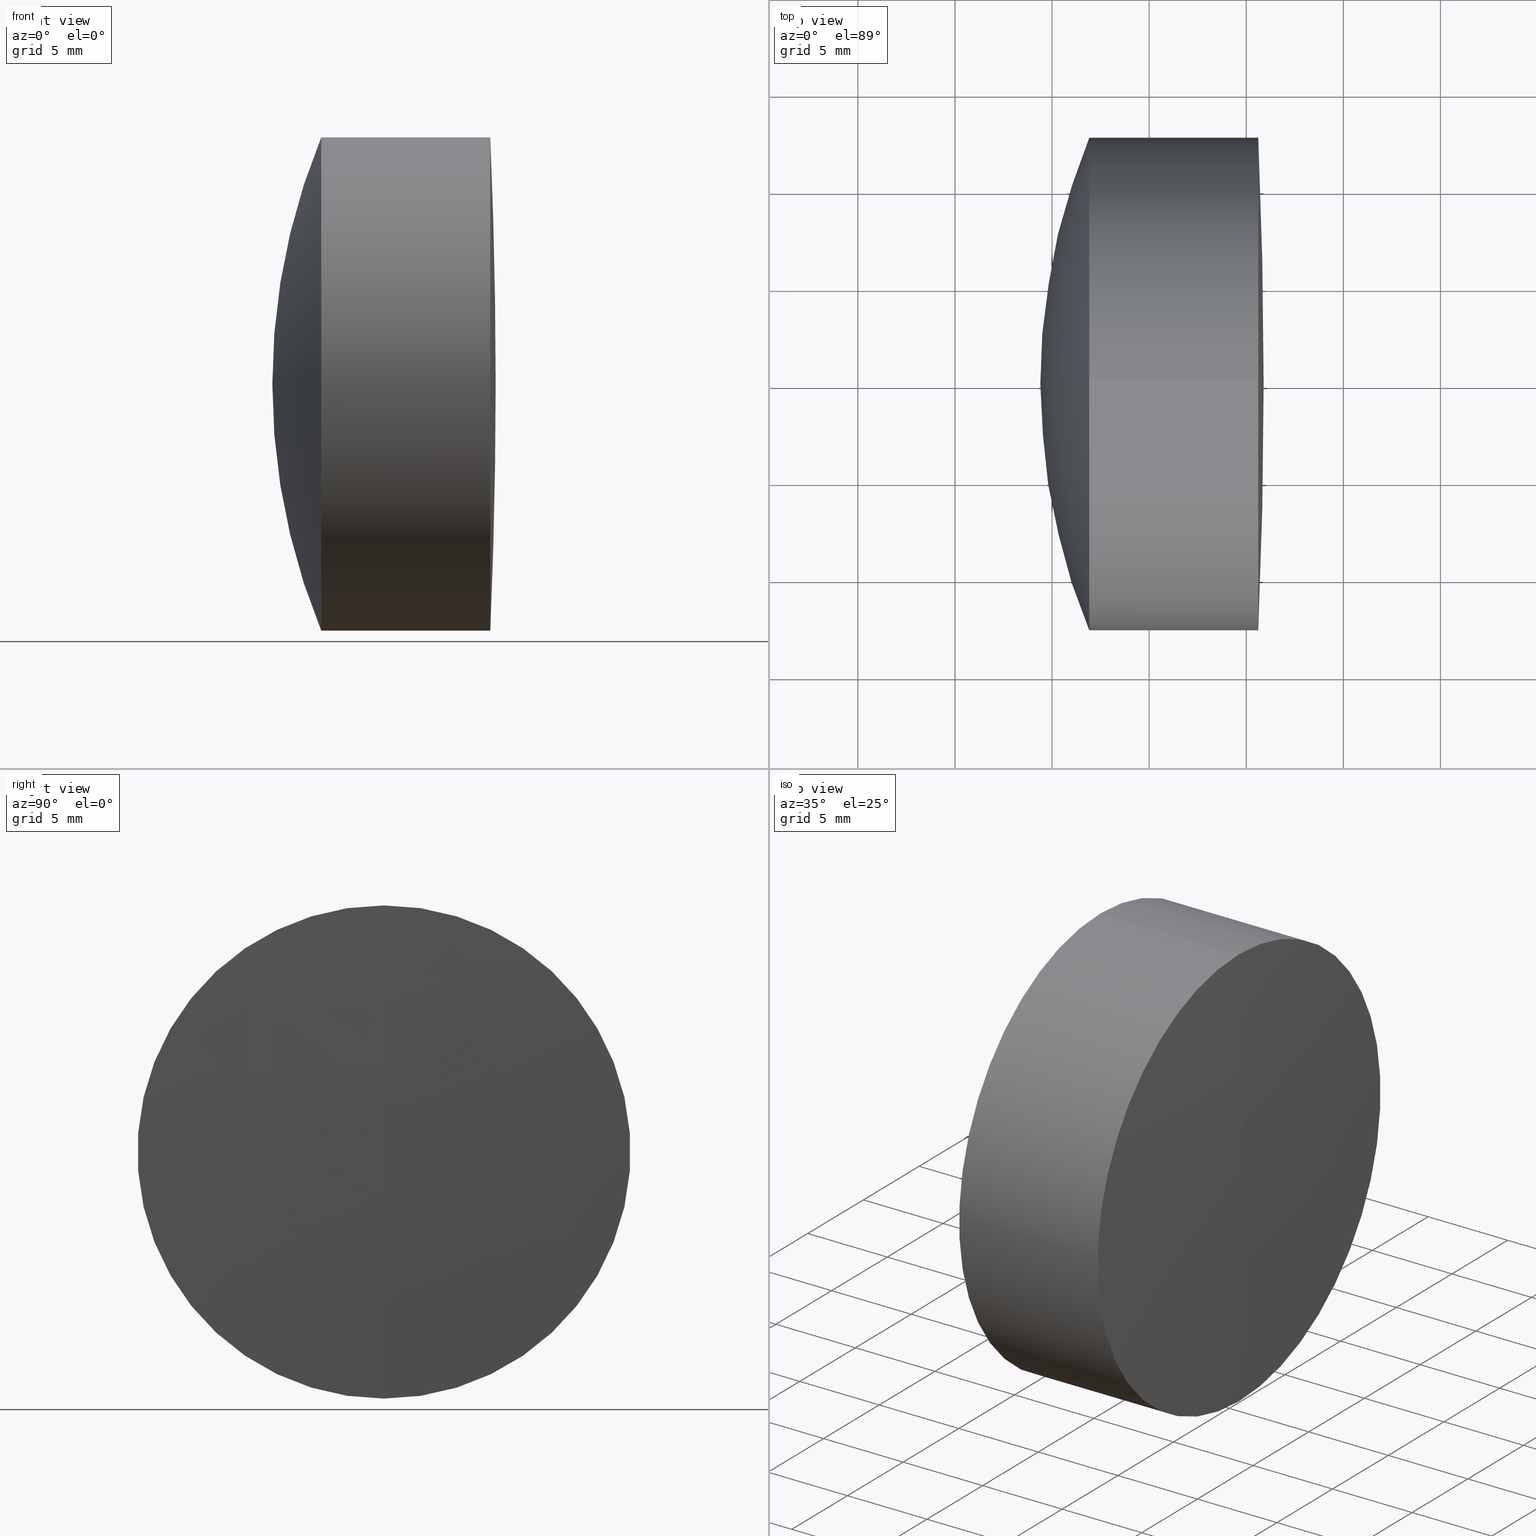
[diagram: canonical four-view strip — front | top / right | iso, engineering-drawing reading convention]
A machine part, canonical four-view strip (front | top / right | iso — engineering-drawing reading convention). The complete STEP part file that produces these views, byte-faithful:
ISO-10303-21;
HEADER;
FILE_DESCRIPTION (( 'STEP AP214' ),
    '1' );
FILE_NAME ('145054.STEP',
    '2019-05-13T07:34:26',
    ( 'user' ),
    ( '΢���й�' ),
    'SwSTEP 2.0',
    'SolidWorks 2016',
    '' );
FILE_SCHEMA (( 'AUTOMOTIVE_DESIGN' ));
ENDSEC;

DATA;
#1 = AXIS2_PLACEMENT_3D ( 'NONE', #181, #180, #169 ) ;
#2 = AXIS2_PLACEMENT_3D ( 'NONE', #161, #240, #300 ) ;
#3 = DIRECTION ( 'NONE',  ( 0.0000000000000000000, 1.000000000000000000, 0.0000000000000000000 ) ) ;
#4 = ORIENTED_EDGE ( 'NONE', *, *, #146, .T. ) ;
#5 = PRODUCT_RELATED_PRODUCT_CATEGORY ( 'part', '', ( #329 ) ) ;
#6 = ADVANCED_FACE ( 'NONE', ( #219 ), #7, .T. ) ;
#7 = CYLINDRICAL_SURFACE ( 'NONE', #183, 12.69999999999999600 ) ;
#8 = LINE ( 'NONE', #189, #239 ) ;
#9 = VERTEX_POINT ( 'NONE', #72 ) ;
#10 = AXIS2_PLACEMENT_3D ( 'NONE', #43, #313, #306 ) ;
#11 = DIRECTION ( 'NONE',  ( 0.0000000000000000000, 0.0000000000000000000, 1.000000000000000000 ) ) ;
#12 = SPHERICAL_SURFACE ( 'NONE', #266, 22.29999999999999400 ) ;
#13 = CARTESIAN_POINT ( 'NONE',  ( 0.0000000000000000000, 0.0000000000000000000, 0.0000000000000000000 ) ) ;
#14 = EDGE_CURVE ( 'NONE', #281, #97, #102, .T. ) ;
#15 = ORIENTED_EDGE ( 'NONE', *, *, #114, .F. ) ;
#16 = UNCERTAINTY_MEASURE_WITH_UNIT (LENGTH_MEASURE( 1.000000000000000100E-005 ), #152, 'distance_accuracy_value', 'NONE');
#17 = MECHANICAL_DESIGN_GEOMETRIC_PRESENTATION_REPRESENTATION (  '', ( #192 ), #138 ) ;
#18 =( GEOMETRIC_REPRESENTATION_CONTEXT ( 3 ) GLOBAL_UNCERTAINTY_ASSIGNED_CONTEXT ( ( #16 ) ) GLOBAL_UNIT_ASSIGNED_CONTEXT ( ( #152, #136, #200 ) ) REPRESENTATION_CONTEXT ( 'NONE', 'WORKASPACE' ) );
#19 = ADVANCED_FACE ( 'NONE', ( #147 ), #108, .T. ) ;
#20 = CARTESIAN_POINT ( 'NONE',  ( 211.0958458084194300, 0.0000000000000000000, -3.185954776904472300E-015 ) ) ;
#21 = DIRECTION ( 'NONE',  ( 0.0000000000000000000, 0.0000000000000000000, 1.000000000000000000 ) ) ;
#22 = DIRECTION ( 'NONE',  ( 0.0000000000000000000, 0.0000000000000000000, 1.000000000000000000 ) ) ;
#23 = VERTEX_POINT ( 'NONE', #163 ) ;
#24 = VERTEX_POINT ( 'NONE', #341 ) ;
#25 = DIRECTION ( 'NONE',  ( -1.000000000000000000, -0.0000000000000000000, -0.0000000000000000000 ) ) ;
#26 = STYLED_ITEM ( 'NONE', ( #40 ), #179 ) ;
#27 = DIRECTION ( 'NONE',  ( -1.000000000000000000, -0.0000000000000000000, -0.0000000000000000000 ) ) ;
#28 = CARTESIAN_POINT ( 'NONE',  ( 226.9127335551075600, 1.555301434917138200E-015, -12.70000000000000100 ) ) ;
#29 = VERTEX_POINT ( 'NONE', #283 ) ;
#30 = EDGE_LOOP ( 'NONE', ( #149, #182, #94 ) ) ;
#31 = DIRECTION ( 'NONE',  ( 0.0000000000000000000, 0.0000000000000000000, 1.000000000000000000 ) ) ;
#32 = ADVANCED_FACE ( 'NONE', ( #187 ), #258, .F. ) ;
#33 = SURFACE_SIDE_STYLE ('',( #287 ) ) ;
#34 = EDGE_LOOP ( 'NONE', ( #162, #117, #41, #193 ) ) ;
#35 = ORIENTED_EDGE ( 'NONE', *, *, #299, .T. ) ;
#36 = LINE ( 'NONE', #54, #207 ) ;
#37 =( GEOMETRIC_REPRESENTATION_CONTEXT ( 3 ) GLOBAL_UNCERTAINTY_ASSIGNED_CONTEXT ( ( #78 ) ) GLOBAL_UNIT_ASSIGNED_CONTEXT ( ( #99, #44, #301 ) ) REPRESENTATION_CONTEXT ( 'NONE', 'WORKASPACE' ) );
#38 = EDGE_LOOP ( 'NONE', ( #60, #322, #323 ) ) ;
#39 = FACE_OUTER_BOUND ( 'NONE', #289, .T. ) ;
#40 = PRESENTATION_STYLE_ASSIGNMENT (( #235 ) ) ;
#41 = ORIENTED_EDGE ( 'NONE', *, *, #215, .T. ) ;
#42 = EDGE_CURVE ( 'NONE', #29, #97, #157, .T. ) ;
#43 = CARTESIAN_POINT ( 'NONE',  ( 211.0958458084194300, 0.0000000000000000000, -3.185954776904472300E-015 ) ) ;
#44 =( NAMED_UNIT ( * ) PLANE_ANGLE_UNIT ( ) SI_UNIT ( $, .RADIAN. ) );
#45 = DIRECTION ( 'NONE',  ( 0.0000000000000000000, 0.0000000000000000000, 1.000000000000000000 ) ) ;
#46 = CARTESIAN_POINT ( 'NONE',  ( -55.20415419158062100, 0.0000000000000000000, 0.0000000000000000000 ) ) ;
#47 = DIRECTION ( 'NONE',  ( -1.000000000000000000, -0.0000000000000000000, -0.0000000000000000000 ) ) ;
#48 = CARTESIAN_POINT ( 'NONE',  ( 226.9127335551075600, 0.0000000000000000000, 0.0000000000000000000 ) ) ;
#49 = ORIENTED_EDGE ( 'NONE', *, *, #87, .F. ) ;
#50 = CIRCLE ( 'NONE', #173, 22.29999999999999400 ) ;
#51 = DIRECTION ( 'NONE',  ( 0.0000000000000000000, 0.0000000000000000000, 1.000000000000000000 ) ) ;
#52 = AXIS2_PLACEMENT_3D ( 'NONE', #288, #71, #225 ) ;
#53 = EDGE_LOOP ( 'NONE', ( #109, #211, #4 ) ) ;
#54 = CARTESIAN_POINT ( 'NONE',  ( -9.702612178336682500, 1.555301434917138000E-015, -12.69999999999999600 ) ) ;
#55 = ADVANCED_FACE ( 'NONE', ( #270 ), #177, .T. ) ;
#56 = DIRECTION ( 'NONE',  ( -1.000000000000000000, -0.0000000000000000000, -0.0000000000000000000 ) ) ;
#57 = DIRECTION ( 'NONE',  ( -1.000000000000000000, -0.0000000000000000000, -0.0000000000000000000 ) ) ;
#58 = AXIS2_PLACEMENT_3D ( 'NONE', #13, #244, #273 ) ;
#59 = CARTESIAN_POINT ( 'NONE',  ( 229.4261485882427700, 1.555301434917138000E-015, -12.69999999999999600 ) ) ;
#60 = ORIENTED_EDGE ( 'NONE', *, *, #299, .F. ) ;
#61 = AXIS2_PLACEMENT_3D ( 'NONE', #153, #83, #82 ) ;
#62 = AXIS2_PLACEMENT_3D ( 'NONE', #234, #277, #347 ) ;
#63 = SPHERICAL_SURFACE ( 'NONE', #319, 22.29999999999999400 ) ;
#64 = DIRECTION ( 'NONE',  ( 0.0000000000000000000, 0.0000000000000000000, -1.000000000000000000 ) ) ;
#65 = EDGE_LOOP ( 'NONE', ( #208, #284, #218 ) ) ;
#66 = ORIENTED_EDGE ( 'NONE', *, *, #168, .F. ) ;
#67 = ADVANCED_BREP_SHAPE_REPRESENTATION ( '145054', ( #141, #179, #58 ), #18 ) ;
#68 = VERTEX_POINT ( 'NONE', #210 ) ;
#69 = CYLINDRICAL_SURFACE ( 'NONE', #101, 12.70000000000002100 ) ;
#70 = ADVANCED_FACE ( 'NONE', ( #254 ), #69, .T. ) ;
#71 = DIRECTION ( 'NONE',  ( 0.0000000000000000000, 1.000000000000000000, 0.0000000000000000000 ) ) ;
#72 = CARTESIAN_POINT ( 'NONE',  ( 235.6186784746321600, 1.555301434917140800E-015, -12.70000000000001700 ) ) ;
#73 = ORIENTED_EDGE ( 'NONE', *, *, #215, .F. ) ;
#74 = AXIS2_PLACEMENT_3D ( 'NONE', #20, #3, #21 ) ;
#75 = SURFACE_STYLE_USAGE ( .BOTH. , #77 ) ;
#76 = CIRCLE ( 'NONE', #10, 22.29999999999999400 ) ;
#77 = SURFACE_SIDE_STYLE ('',( #198 ) ) ;
#78 = UNCERTAINTY_MEASURE_WITH_UNIT (LENGTH_MEASURE( 1.000000000000000100E-005 ), #99, 'distance_accuracy_value', 'NONE');
#79 = ORIENTED_EDGE ( 'NONE', *, *, #127, .F. ) ;
#80 = DIRECTION ( 'NONE',  ( 0.0000000000000000000, -1.224646799147353200E-016, 1.000000000000000000 ) ) ;
#81 = FILL_AREA_STYLE ('',( #188 ) ) ;
#82 = DIRECTION ( 'NONE',  ( 0.0000000000000000000, 0.0000000000000000000, -1.000000000000000000 ) ) ;
#83 = DIRECTION ( 'NONE',  ( 0.0000000000000000000, -1.000000000000000000, 0.0000000000000000000 ) ) ;
#84 = ORIENTED_EDGE ( 'NONE', *, *, #168, .T. ) ;
#85 = CLOSED_SHELL ( 'NONE', ( #296, #6, #19, #265, #55, #333 ) ) ;
#86 = CARTESIAN_POINT ( 'NONE',  ( 229.4261485882427700, 0.0000000000000000000, 12.70000000000002200 ) ) ;
#87 = EDGE_CURVE ( 'NONE', #68, #105, #336, .T. ) ;
#88 = CLOSED_SHELL ( 'NONE', ( #245, #70, #236, #32, #125, #321 ) ) ;
#89 = EDGE_CURVE ( 'NONE', #238, #105, #36, .T. ) ;
#90 = MECHANICAL_DESIGN_GEOMETRIC_PRESENTATION_REPRESENTATION (  '', ( #221 ), #37 ) ;
#91 = UNCERTAINTY_MEASURE_WITH_UNIT (LENGTH_MEASURE( 1.000000000000000100E-005 ), #246, 'distance_accuracy_value', 'NONE');
#92 = COLOUR_RGB ( '',1.000000000000000000, 1.000000000000000000, 1.000000000000000000 ) ;
#93 = DIRECTION ( 'NONE',  ( -1.000000000000000000, -0.0000000000000000000, -0.0000000000000000000 ) ) ;
#94 = ORIENTED_EDGE ( 'NONE', *, *, #264, .F. ) ;
#95 = ORIENTED_EDGE ( 'NONE', *, *, #324, .T. ) ;
#96 = EDGE_CURVE ( 'NONE', #135, #97, #50, .T. ) ;
#97 = VERTEX_POINT ( 'NONE', #86 ) ;
#98 = AXIS2_PLACEMENT_3D ( 'NONE', #292, #332, #303 ) ;
#99 =( LENGTH_UNIT ( ) NAMED_UNIT ( * ) SI_UNIT ( .MILLI., .METRE. ) );
#100 = FACE_OUTER_BOUND ( 'NONE', #65, .T. ) ;
#101 = AXIS2_PLACEMENT_3D ( 'NONE', #191, #305, #166 ) ;
#102 = CIRCLE ( 'NONE', #316, 12.70000000000002400 ) ;
#103 = CARTESIAN_POINT ( 'NONE',  ( 224.3958458084194700, 0.0000000000000000000, -1.654376558981438700E-015 ) ) ;
#104 = ORIENTED_EDGE ( 'NONE', *, *, #293, .T. ) ;
#105 = VERTEX_POINT ( 'NONE', #28 ) ;
#106 = CARTESIAN_POINT ( 'NONE',  ( 235.8958458084193500, 0.0000000000000000000, 1.782473416158972500E-014 ) ) ;
#107 = CIRCLE ( 'NONE', #325, 12.69999999999999600 ) ;
#108 = SPHERICAL_SURFACE ( 'NONE', #123, 33.29999999999996900 ) ;
#109 = ORIENTED_EDGE ( 'NONE', *, *, #167, .F. ) ;
#110 =( NAMED_UNIT ( * ) SI_UNIT ( $, .STERADIAN. ) SOLID_ANGLE_UNIT ( ) );
#111 = APPLICATION_PROTOCOL_DEFINITION ( 'draft international standard', 'automotive_design', 1998, #148 ) ;
#112 = SHAPE_DEFINITION_REPRESENTATION ( #142, #67 ) ;
#113 = PRESENTATION_LAYER_ASSIGNMENT (  '', '', ( #221 ) ) ;
#114 = EDGE_CURVE ( 'NONE', #9, #281, #8, .T. ) ;
#115 =( NAMED_UNIT ( * ) PLANE_ANGLE_UNIT ( ) SI_UNIT ( $, .RADIAN. ) );
#116 = ORIENTED_EDGE ( 'NONE', *, *, #14, .F. ) ;
#117 = ORIENTED_EDGE ( 'NONE', *, *, #264, .T. ) ;
#118 = AXIS2_PLACEMENT_3D ( 'NONE', #228, #346, #31 ) ;
#119 = COLOUR_RGB ( '',1.000000000000000000, 1.000000000000000000, 1.000000000000000000 ) ;
#120 = EDGE_LOOP ( 'NONE', ( #339, #35, #262 ) ) ;
#121 = DIRECTION ( 'NONE',  ( 0.0000000000000000000, 1.000000000000000000, 0.0000000000000000000 ) ) ;
#122 = COLOUR_RGB ( '',1.000000000000000000, 1.000000000000000000, 1.000000000000000000 ) ;
#123 = AXIS2_PLACEMENT_3D ( 'NONE', #130, #205, #278 ) ;
#124 = CARTESIAN_POINT ( 'NONE',  ( 226.9127335551075600, 0.0000000000000000000, 0.0000000000000000000 ) ) ;
#125 = ADVANCED_FACE ( 'NONE', ( #345 ), #190, .T. ) ;
#126 = DIRECTION ( 'NONE',  ( 0.0000000000000000000, 0.0000000000000000000, 1.000000000000000000 ) ) ;
#127 = EDGE_CURVE ( 'NONE', #105, #224, #344, .T. ) ;
#128 = AXIS2_PLACEMENT_3D ( 'NONE', #46, #334, #328 ) ;
#129 = EDGE_LOOP ( 'NONE', ( #247, #327, #66 ) ) ;
#130 = CARTESIAN_POINT ( 'NONE',  ( 257.6958458084194500, 0.0000000000000000000, -3.693413479561779400E-015 ) ) ;
#131 = CARTESIAN_POINT ( 'NONE',  ( 211.0958458084194300, 0.0000000000000000000, -3.185954776904472300E-015 ) ) ;
#132 =( LENGTH_UNIT ( ) NAMED_UNIT ( * ) SI_UNIT ( .MILLI., .METRE. ) );
#133 = EDGE_CURVE ( 'NONE', #243, #9, #317, .T. ) ;
#134 = AXIS2_PLACEMENT_3D ( 'NONE', #286, #57, #309 ) ;
#135 = VERTEX_POINT ( 'NONE', #257 ) ;
#136 =( NAMED_UNIT ( * ) PLANE_ANGLE_UNIT ( ) SI_UNIT ( $, .RADIAN. ) );
#137 = DIRECTION ( 'NONE',  ( 0.0000000000000000000, 0.0000000000000000000, 1.000000000000000000 ) ) ;
#138 =( GEOMETRIC_REPRESENTATION_CONTEXT ( 3 ) GLOBAL_UNCERTAINTY_ASSIGNED_CONTEXT ( ( #223 ) ) GLOBAL_UNIT_ASSIGNED_CONTEXT ( ( #132, #115, #110 ) ) REPRESENTATION_CONTEXT ( 'NONE', 'WORKASPACE' ) );
#139 = CARTESIAN_POINT ( 'NONE',  ( 229.4261485882427700, 0.0000000000000000000, 0.0000000000000000000 ) ) ;
#140 = FACE_OUTER_BOUND ( 'NONE', #202, .T. ) ;
#141 = MANIFOLD_SOLID_BREP ( '��ת1', #85 ) ;
#142 = PRODUCT_DEFINITION_SHAPE ( 'NONE', 'NONE',  #307 ) ;
#143 = ORIENTED_EDGE ( 'NONE', *, *, #89, .T. ) ;
#144 = SPHERICAL_SURFACE ( 'NONE', #285, 22.29999999999999400 ) ;
#145 = AXIS2_PLACEMENT_3D ( 'NONE', #256, #25, #308 ) ;
#146 = EDGE_CURVE ( 'NONE', #97, #281, #253, .T. ) ;
#147 = FACE_OUTER_BOUND ( 'NONE', #129, .T. ) ;
#148 = APPLICATION_CONTEXT ( 'automotive_design' ) ;
#149 = ORIENTED_EDGE ( 'NONE', *, *, #204, .F. ) ;
#150 = AXIS2_PLACEMENT_3D ( 'NONE', #139, #199, #195 ) ;
#151 = FILL_AREA_STYLE ('',( #185 ) ) ;
#152 =( LENGTH_UNIT ( ) NAMED_UNIT ( * ) SI_UNIT ( .MILLI., .METRE. ) );
#153 = CARTESIAN_POINT ( 'NONE',  ( 257.6958458084194500, 0.0000000000000000000, -3.693413479561779400E-015 ) ) ;
#154 = PRODUCT_DEFINITION_CONTEXT ( 'detailed design', #233, 'design' ) ;
#155 = DIRECTION ( 'NONE',  ( 0.0000000000000000000, 0.0000000000000000000, 1.000000000000000000 ) ) ;
#156 = PRESENTATION_STYLE_ASSIGNMENT (( #175 ) ) ;
#157 = LINE ( 'NONE', #282, #241 ) ;
#158 = CARTESIAN_POINT ( 'NONE',  ( 211.0958458084194300, 0.0000000000000000000, -3.185954776904472300E-015 ) ) ;
#159 = CARTESIAN_POINT ( 'NONE',  ( 211.0958458084194300, 0.0000000000000000000, -3.185954776904472300E-015 ) ) ;
#160 = MECHANICAL_DESIGN_GEOMETRIC_PRESENTATION_REPRESENTATION (  '', ( #26 ), #295 ) ;
#161 = CARTESIAN_POINT ( 'NONE',  ( 229.4261485882427700, 0.0000000000000000000, 0.0000000000000000000 ) ) ;
#162 = ORIENTED_EDGE ( 'NONE', *, *, #89, .F. ) ;
#163 = CARTESIAN_POINT ( 'NONE',  ( 233.3958458084194100, 0.0000000000000000000, -1.820473595855174100E-015 ) ) ;
#164 = FACE_OUTER_BOUND ( 'NONE', #120, .T. ) ;
#165 = CARTESIAN_POINT ( 'NONE',  ( 211.0958458084194300, 0.0000000000000000000, -3.185954776904472300E-015 ) ) ;
#166 = DIRECTION ( 'NONE',  ( 0.0000000000000000000, 0.0000000000000000000, 1.000000000000000000 ) ) ;
#167 = EDGE_CURVE ( 'NONE', #135, #281, #237, .T. ) ;
#168 = EDGE_CURVE ( 'NONE', #68, #224, #320, .T. ) ;
#169 = DIRECTION ( 'NONE',  ( 0.0000000000000000000, -1.224646799147353200E-016, 1.000000000000000000 ) ) ;
#170 = ORIENTED_EDGE ( 'NONE', *, *, #260, .F. ) ;
#171 = SPHERICAL_SURFACE ( 'NONE', #128, 291.0999999999999700 ) ;
#172 = ORIENTED_EDGE ( 'NONE', *, *, #267, .F. ) ;
#173 = AXIS2_PLACEMENT_3D ( 'NONE', #159, #178, #201 ) ;
#174 = PRESENTATION_LAYER_ASSIGNMENT (  '', '', ( #26 ) ) ;
#175 = SURFACE_STYLE_USAGE ( .BOTH. , #33 ) ;
#176 = CIRCLE ( 'NONE', #2, 12.69999999999999600 ) ;
#177 = CYLINDRICAL_SURFACE ( 'NONE', #134, 12.69999999999999600 ) ;
#178 = DIRECTION ( 'NONE',  ( 0.0000000000000000000, -1.000000000000000000, 0.0000000000000000000 ) ) ;
#179 = MANIFOLD_SOLID_BREP ( '��ת3', #88 ) ;
#180 = DIRECTION ( 'NONE',  ( -0.0000000000000000000, 1.000000000000000000, 1.224646799147353200E-016 ) ) ;
#181 = CARTESIAN_POINT ( 'NONE',  ( 211.0958458084194300, 0.0000000000000000000, -3.185954776904472300E-015 ) ) ;
#182 = ORIENTED_EDGE ( 'NONE', *, *, #260, .T. ) ;
#183 = AXIS2_PLACEMENT_3D ( 'NONE', #259, #27, #137 ) ;
#184 = CARTESIAN_POINT ( 'NONE',  ( 235.6186784746321600, 0.0000000000000000000, 0.0000000000000000000 ) ) ;
#185 = FILL_AREA_STYLE_COLOUR ( '', #92 ) ;
#186 = FACE_OUTER_BOUND ( 'NONE', #38, .T. ) ;
#187 = FACE_OUTER_BOUND ( 'NONE', #53, .T. ) ;
#188 = FILL_AREA_STYLE_COLOUR ( '', #122 ) ;
#189 = CARTESIAN_POINT ( 'NONE',  ( -0.5519199926577972300, 1.555301434917141000E-015, -12.70000000000002100 ) ) ;
#190 = CYLINDRICAL_SURFACE ( 'NONE', #145, 12.70000000000002100 ) ;
#191 = CARTESIAN_POINT ( 'NONE',  ( -0.5519199926577972300, 0.0000000000000000000, 0.0000000000000000000 ) ) ;
#192 = STYLED_ITEM ( 'NONE', ( #217 ), #141 ) ;
#193 = ORIENTED_EDGE ( 'NONE', *, *, #324, .F. ) ;
#194 = AXIS2_PLACEMENT_3D ( 'NONE', #250, #290, #80 ) ;
#195 = DIRECTION ( 'NONE',  ( 0.0000000000000000000, 0.0000000000000000000, 1.000000000000000000 ) ) ;
#196 = CARTESIAN_POINT ( 'NONE',  ( 257.6958458084194500, 0.0000000000000000000, -3.693413479561779400E-015 ) ) ;
#197 = CARTESIAN_POINT ( 'NONE',  ( 229.4261485882427700, 0.0000000000000000000, 0.0000000000000000000 ) ) ;
#198 = SURFACE_STYLE_FILL_AREA ( #151 ) ;
#199 = DIRECTION ( 'NONE',  ( -1.000000000000000000, -0.0000000000000000000, -0.0000000000000000000 ) ) ;
#200 =( NAMED_UNIT ( * ) SI_UNIT ( $, .STERADIAN. ) SOLID_ANGLE_UNIT ( ) );
#201 = DIRECTION ( 'NONE',  ( 0.0000000000000000000, 0.0000000000000000000, -1.000000000000000000 ) ) ;
#202 = EDGE_LOOP ( 'NONE', ( #170, #297, #172 ) ) ;
#203 = DIRECTION ( 'NONE',  ( -1.000000000000000000, -0.0000000000000000000, -0.0000000000000000000 ) ) ;
#204 = EDGE_CURVE ( 'NONE', #23, #238, #76, .T. ) ;
#205 = DIRECTION ( 'NONE',  ( 0.0000000000000000000, 1.000000000000000000, 0.0000000000000000000 ) ) ;
#206 = LINE ( 'NONE', #261, #331 ) ;
#207 = VECTOR ( 'NONE', #56, 1000.000000000000000 ) ;
#208 = ORIENTED_EDGE ( 'NONE', *, *, #96, .F. ) ;
#209 = DIRECTION ( 'NONE',  ( -1.000000000000000000, -0.0000000000000000000, -0.0000000000000000000 ) ) ;
#210 = CARTESIAN_POINT ( 'NONE',  ( 226.9127335551075600, 0.0000000000000000000, 12.69999999999999800 ) ) ;
#211 = ORIENTED_EDGE ( 'NONE', *, *, #96, .T. ) ;
#212 = APPLICATION_PROTOCOL_DEFINITION ( 'draft international standard', 'automotive_design', 1998, #233 ) ;
#213 = AXIS2_PLACEMENT_3D ( 'NONE', #276, #227, #64 ) ;
#214 = SURFACE_STYLE_FILL_AREA ( #81 ) ;
#215 = EDGE_CURVE ( 'NONE', #24, #68, #206, .T. ) ;
#216 = EDGE_LOOP ( 'NONE', ( #271, #143, #49, #73 ) ) ;
#217 = PRESENTATION_STYLE_ASSIGNMENT (( #75 ) ) ;
#218 = ORIENTED_EDGE ( 'NONE', *, *, #14, .T. ) ;
#219 = FACE_OUTER_BOUND ( 'NONE', #216, .T. ) ;
#220 = DIRECTION ( 'NONE',  ( 0.0000000000000000000, 0.0000000000000000000, 1.000000000000000000 ) ) ;
#221 = STYLED_ITEM ( 'NONE', ( #156 ), #67 ) ;
#222 = CIRCLE ( 'NONE', #62, 12.70000000000001700 ) ;
#223 = UNCERTAINTY_MEASURE_WITH_UNIT (LENGTH_MEASURE( 1.000000000000000100E-005 ), #132, 'distance_accuracy_value', 'NONE');
#224 = VERTEX_POINT ( 'NONE', #103 ) ;
#226 = ORIENTED_EDGE ( 'NONE', *, *, #114, .T. ) ;
#225 = DIRECTION ( 'NONE',  ( 0.0000000000000000000, 0.0000000000000000000, 1.000000000000000000 ) ) ;
#227 = DIRECTION ( 'NONE',  ( 0.0000000000000000000, -1.000000000000000000, 0.0000000000000000000 ) ) ;
#228 = CARTESIAN_POINT ( 'NONE',  ( -55.20415419158062100, 0.0000000000000000000, 0.0000000000000000000 ) ) ;
#229 = AXIS2_PLACEMENT_3D ( 'NONE', #184, #343, #311 ) ;
#230 = DIRECTION ( 'NONE',  ( 0.0000000000000000000, -1.224646799147353200E-016, 1.000000000000000000 ) ) ;
#231 = DIRECTION ( 'NONE',  ( -0.0000000000000000000, 1.000000000000000000, 1.224646799147353200E-016 ) ) ;
#232 = SURFACE_SIDE_STYLE ('',( #214 ) ) ;
#233 = APPLICATION_CONTEXT ( 'automotive_design' ) ;
#234 = CARTESIAN_POINT ( 'NONE',  ( 235.6186784746321600, 0.0000000000000000000, 0.0000000000000000000 ) ) ;
#235 = SURFACE_STYLE_USAGE ( .BOTH. , #232 ) ;
#236 = ADVANCED_FACE ( 'NONE', ( #100 ), #144, .F. ) ;
#237 = CIRCLE ( 'NONE', #1, 22.29999999999999400 ) ;
#238 = VERTEX_POINT ( 'NONE', #59 ) ;
#239 = VECTOR ( 'NONE', #203, 1000.000000000000000 ) ;
#240 = DIRECTION ( 'NONE',  ( -1.000000000000000000, -0.0000000000000000000, -0.0000000000000000000 ) ) ;
#241 = VECTOR ( 'NONE', #340, 1000.000000000000000 ) ;
#242 = AXIS2_PLACEMENT_3D ( 'NONE', #196, #231, #230 ) ;
#243 = VERTEX_POINT ( 'NONE', #106 ) ;
#244 = DIRECTION ( 'NONE',  ( 0.0000000000000000000, 0.0000000000000000000, 1.000000000000000000 ) ) ;
#245 = ADVANCED_FACE ( 'NONE', ( #186 ), #279, .T. ) ;
#246 =( LENGTH_UNIT ( ) NAMED_UNIT ( * ) SI_UNIT ( .MILLI., .METRE. ) );
#247 = ORIENTED_EDGE ( 'NONE', *, *, #87, .T. ) ;
#248 = CARTESIAN_POINT ( 'NONE',  ( 229.4261485882427700, 1.555301434917141000E-015, -12.70000000000002600 ) ) ;
#249 =( NAMED_UNIT ( * ) PLANE_ANGLE_UNIT ( ) SI_UNIT ( $, .RADIAN. ) );
#250 = CARTESIAN_POINT ( 'NONE',  ( -55.20415419158062100, 0.0000000000000000000, 0.0000000000000000000 ) ) ;
#251 = DIRECTION ( 'NONE',  ( 0.0000000000000000000, 1.000000000000000000, 0.0000000000000000000 ) ) ;
#252 =( NAMED_UNIT ( * ) SI_UNIT ( $, .STERADIAN. ) SOLID_ANGLE_UNIT ( ) );
#253 = CIRCLE ( 'NONE', #150, 12.70000000000002400 ) ;
#254 = FACE_OUTER_BOUND ( 'NONE', #312, .T. ) ;
#255 = EDGE_CURVE ( 'NONE', #9, #29, #222, .T. ) ;
#256 = CARTESIAN_POINT ( 'NONE',  ( -0.5519199926577972300, 0.0000000000000000000, 0.0000000000000000000 ) ) ;
#257 = CARTESIAN_POINT ( 'NONE',  ( 233.3958458084194100, 0.0000000000000000000, -1.820473595855174100E-015 ) ) ;
#258 = SPHERICAL_SURFACE ( 'NONE', #74, 22.29999999999999400 ) ;
#259 = CARTESIAN_POINT ( 'NONE',  ( -9.702612178336682500, 0.0000000000000000000, 0.0000000000000000000 ) ) ;
#260 = EDGE_CURVE ( 'NONE', #23, #24, #268, .T. ) ;
#261 = CARTESIAN_POINT ( 'NONE',  ( -9.702612178336682500, 0.0000000000000000000, 12.69999999999999600 ) ) ;
#262 = ORIENTED_EDGE ( 'NONE', *, *, #255, .F. ) ;
#263 = DIRECTION ( 'NONE',  ( 0.0000000000000000000, 1.000000000000000000, 0.0000000000000000000 ) ) ;
#264 = EDGE_CURVE ( 'NONE', #238, #24, #107, .T. ) ;
#265 = ADVANCED_FACE ( 'NONE', ( #39 ), #342, .T. ) ;
#266 = AXIS2_PLACEMENT_3D ( 'NONE', #158, #121, #220 ) ;
#267 = EDGE_CURVE ( 'NONE', #24, #238, #176, .T. ) ;
#268 = CIRCLE ( 'NONE', #98, 22.29999999999999400 ) ;
#269 = FILL_AREA_STYLE_COLOUR ( '', #119 ) ;
#270 = FACE_OUTER_BOUND ( 'NONE', #34, .T. ) ;
#271 = ORIENTED_EDGE ( 'NONE', *, *, #267, .T. ) ;
#272 = DIRECTION ( 'NONE',  ( -1.000000000000000000, -0.0000000000000000000, -0.0000000000000000000 ) ) ;
#273 = DIRECTION ( 'NONE',  ( 1.000000000000000000, 0.0000000000000000000, 0.0000000000000000000 ) ) ;
#274 = ORIENTED_EDGE ( 'NONE', *, *, #42, .F. ) ;
#275 = FILL_AREA_STYLE ('',( #269 ) ) ;
#276 = CARTESIAN_POINT ( 'NONE',  ( -55.20415419158062100, 0.0000000000000000000, 0.0000000000000000000 ) ) ;
#277 = DIRECTION ( 'NONE',  ( -1.000000000000000000, -0.0000000000000000000, -0.0000000000000000000 ) ) ;
#278 = DIRECTION ( 'NONE',  ( 0.0000000000000000000, 0.0000000000000000000, 1.000000000000000000 ) ) ;
#279 = SPHERICAL_SURFACE ( 'NONE', #118, 291.0999999999999700 ) ;
#280 = PRESENTATION_LAYER_ASSIGNMENT (  '', '', ( #192 ) ) ;
#281 = VERTEX_POINT ( 'NONE', #248 ) ;
#282 = CARTESIAN_POINT ( 'NONE',  ( -0.5519199926577972300, 0.0000000000000000000, 12.70000000000002100 ) ) ;
#283 = CARTESIAN_POINT ( 'NONE',  ( 235.6186784746321600, 0.0000000000000000000, 12.70000000000001700 ) ) ;
#284 = ORIENTED_EDGE ( 'NONE', *, *, #167, .T. ) ;
#285 = AXIS2_PLACEMENT_3D ( 'NONE', #165, #251, #51 ) ;
#286 = CARTESIAN_POINT ( 'NONE',  ( -9.702612178336682500, 0.0000000000000000000, 0.0000000000000000000 ) ) ;
#287 = SURFACE_STYLE_FILL_AREA ( #275 ) ;
#288 = CARTESIAN_POINT ( 'NONE',  ( 257.6958458084194500, 0.0000000000000000000, -3.693413479561779400E-015 ) ) ;
#289 = EDGE_LOOP ( 'NONE', ( #79, #95, #84 ) ) ;
#290 = DIRECTION ( 'NONE',  ( -0.0000000000000000000, 1.000000000000000000, 1.224646799147353200E-016 ) ) ;
#291 = AXIS2_PLACEMENT_3D ( 'NONE', #124, #93, #155 ) ;
#292 = CARTESIAN_POINT ( 'NONE',  ( 211.0958458084194300, 0.0000000000000000000, -3.185954776904472300E-015 ) ) ;
#293 = EDGE_CURVE ( 'NONE', #29, #9, #315, .T. ) ;
#294 = EDGE_LOOP ( 'NONE', ( #15, #310, #318, #116 ) ) ;
#295 =( GEOMETRIC_REPRESENTATION_CONTEXT ( 3 ) GLOBAL_UNCERTAINTY_ASSIGNED_CONTEXT ( ( #91 ) ) GLOBAL_UNIT_ASSIGNED_CONTEXT ( ( #246, #249, #252 ) ) REPRESENTATION_CONTEXT ( 'NONE', 'WORKASPACE' ) );
#296 = ADVANCED_FACE ( 'NONE', ( #140 ), #12, .T. ) ;
#297 = ORIENTED_EDGE ( 'NONE', *, *, #204, .T. ) ;
#298 = ORIENTED_EDGE ( 'NONE', *, *, #146, .F. ) ;
#299 = EDGE_CURVE ( 'NONE', #243, #29, #330, .T. ) ;
#300 = DIRECTION ( 'NONE',  ( 0.0000000000000000000, 0.0000000000000000000, 1.000000000000000000 ) ) ;
#301 =( NAMED_UNIT ( * ) SI_UNIT ( $, .STERADIAN. ) SOLID_ANGLE_UNIT ( ) );
#302 = CIRCLE ( 'NONE', #291, 12.69999999999999600 ) ;
#303 = DIRECTION ( 'NONE',  ( 0.0000000000000000000, 0.0000000000000000000, -1.000000000000000000 ) ) ;
#304 = CARTESIAN_POINT ( 'NONE',  ( 229.4261485882427700, 0.0000000000000000000, 0.0000000000000000000 ) ) ;
#305 = DIRECTION ( 'NONE',  ( -1.000000000000000000, -0.0000000000000000000, -0.0000000000000000000 ) ) ;
#306 = DIRECTION ( 'NONE',  ( 0.0000000000000000000, -1.224646799147353200E-016, 1.000000000000000000 ) ) ;
#307 = PRODUCT_DEFINITION ( 'δ֪', '', #326, #154 ) ;
#308 = DIRECTION ( 'NONE',  ( 0.0000000000000000000, 0.0000000000000000000, 1.000000000000000000 ) ) ;
#309 = DIRECTION ( 'NONE',  ( 0.0000000000000000000, 0.0000000000000000000, 1.000000000000000000 ) ) ;
#310 = ORIENTED_EDGE ( 'NONE', *, *, #255, .T. ) ;
#311 = DIRECTION ( 'NONE',  ( 0.0000000000000000000, 0.0000000000000000000, 1.000000000000000000 ) ) ;
#312 = EDGE_LOOP ( 'NONE', ( #104, #226, #298, #274 ) ) ;
#313 = DIRECTION ( 'NONE',  ( -0.0000000000000000000, 1.000000000000000000, 1.224646799147353200E-016 ) ) ;
#314 = DIRECTION ( 'NONE',  ( -1.000000000000000000, -0.0000000000000000000, -0.0000000000000000000 ) ) ;
#315 = CIRCLE ( 'NONE', #229, 12.70000000000001700 ) ;
#316 = AXIS2_PLACEMENT_3D ( 'NONE', #304, #209, #22 ) ;
#317 = CIRCLE ( 'NONE', #194, 291.0999999999999700 ) ;
#318 = ORIENTED_EDGE ( 'NONE', *, *, #42, .T. ) ;
#319 = AXIS2_PLACEMENT_3D ( 'NONE', #131, #263, #11 ) ;
#320 = CIRCLE ( 'NONE', #61, 33.29999999999996900 ) ;
#321 = ADVANCED_FACE ( 'NONE', ( #164 ), #171, .T. ) ;
#322 = ORIENTED_EDGE ( 'NONE', *, *, #133, .T. ) ;
#323 = ORIENTED_EDGE ( 'NONE', *, *, #293, .F. ) ;
#324 = EDGE_CURVE ( 'NONE', #105, #68, #302, .T. ) ;
#325 = AXIS2_PLACEMENT_3D ( 'NONE', #197, #314, #126 ) ;
#326 = PRODUCT_DEFINITION_FORMATION_WITH_SPECIFIED_SOURCE ( '�κ�', '', #329, .NOT_KNOWN. ) ;
#327 = ORIENTED_EDGE ( 'NONE', *, *, #127, .T. ) ;
#328 = DIRECTION ( 'NONE',  ( 0.0000000000000000000, 0.0000000000000000000, 1.000000000000000000 ) ) ;
#329 = PRODUCT ( '145054', '145054', '', ( #338 ) ) ;
#330 = CIRCLE ( 'NONE', #213, 291.0999999999999700 ) ;
#331 = VECTOR ( 'NONE', #272, 1000.000000000000000 ) ;
#332 = DIRECTION ( 'NONE',  ( 0.0000000000000000000, -1.000000000000000000, 0.0000000000000000000 ) ) ;
#333 = ADVANCED_FACE ( 'NONE', ( #335 ), #63, .T. ) ;
#334 = DIRECTION ( 'NONE',  ( 0.0000000000000000000, 1.000000000000000000, 0.0000000000000000000 ) ) ;
#335 = FACE_OUTER_BOUND ( 'NONE', #30, .T. ) ;
#336 = CIRCLE ( 'NONE', #337, 12.69999999999999600 ) ;
#337 = AXIS2_PLACEMENT_3D ( 'NONE', #48, #47, #45 ) ;
#338 = PRODUCT_CONTEXT ( 'NONE', #148, 'mechanical' ) ;
#339 = ORIENTED_EDGE ( 'NONE', *, *, #133, .F. ) ;
#340 = DIRECTION ( 'NONE',  ( -1.000000000000000000, -0.0000000000000000000, -0.0000000000000000000 ) ) ;
#341 = CARTESIAN_POINT ( 'NONE',  ( 229.4261485882427700, 0.0000000000000000000, 12.69999999999999600 ) ) ;
#342 = SPHERICAL_SURFACE ( 'NONE', #52, 33.29999999999996900 ) ;
#343 = DIRECTION ( 'NONE',  ( -1.000000000000000000, -0.0000000000000000000, -0.0000000000000000000 ) ) ;
#344 = CIRCLE ( 'NONE', #242, 33.29999999999996900 ) ;
#345 = FACE_OUTER_BOUND ( 'NONE', #294, .T. ) ;
#346 = DIRECTION ( 'NONE',  ( 0.0000000000000000000, 1.000000000000000000, 0.0000000000000000000 ) ) ;
#347 = DIRECTION ( 'NONE',  ( 0.0000000000000000000, 0.0000000000000000000, 1.000000000000000000 ) ) ;
ENDSEC;
END-ISO-10303-21;
